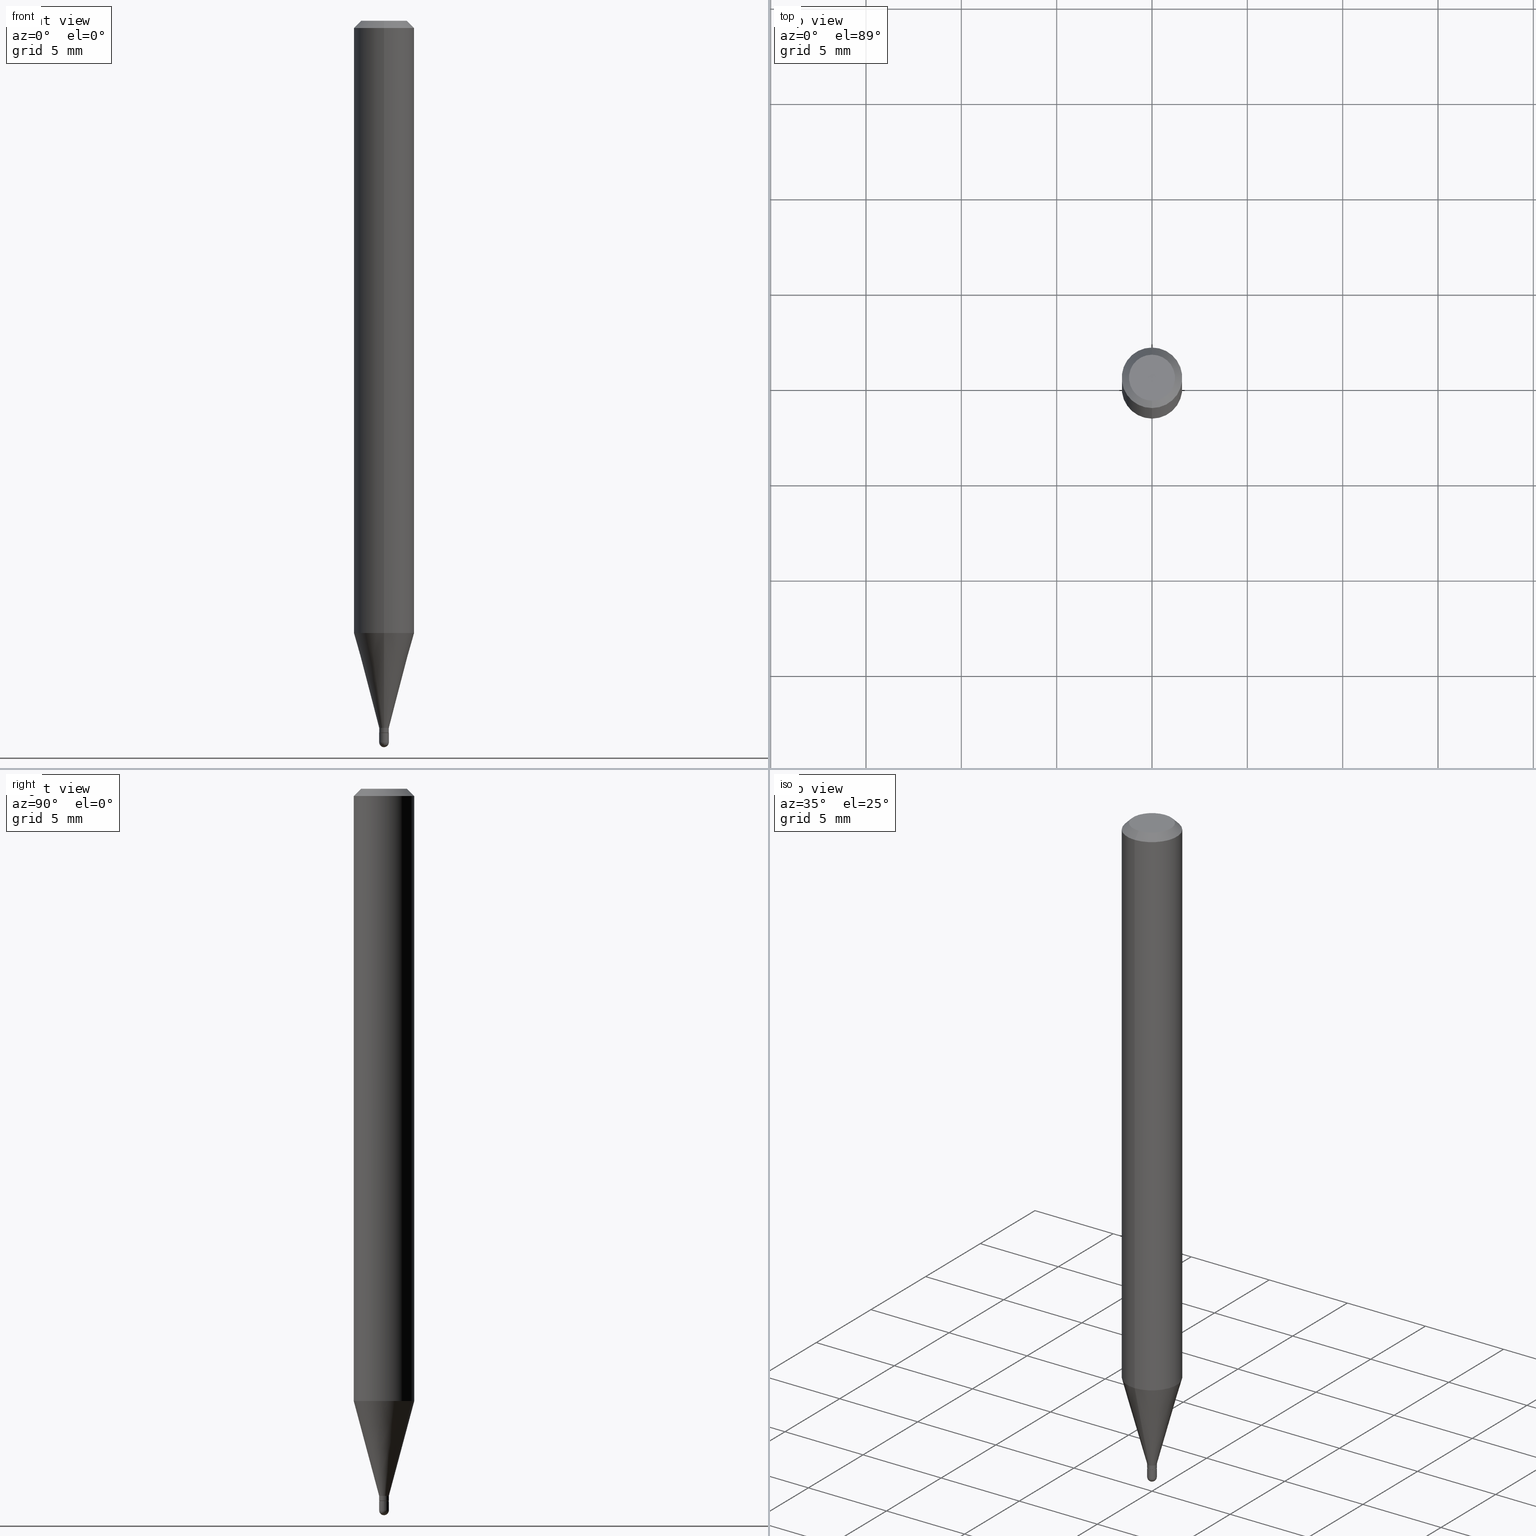
[diagram: canonical four-view strip — front | top / right | iso, engineering-drawing reading convention]
A machine part, canonical four-view strip (front | top / right | iso — engineering-drawing reading convention). The complete STEP part file that produces these views, byte-faithful:
ISO-10303-21;
HEADER;
FILE_DESCRIPTION (( 'STEP AP203' ),
    '1' );
FILE_NAME ('00755.STEP',
    '2024-03-07T18:12:56',
    ( '' ),
    ( '' ),
    'SwSTEP 2.0',
    'SolidWorks 2023',
    '' );
FILE_SCHEMA (( 'CONFIG_CONTROL_DESIGN' ));
ENDSEC;

DATA;
#1 = EDGE_CURVE ( 'NONE', #361, #384, #253, .T. ) ;
#2 = ORIENTED_EDGE ( 'NONE', *, *, #416, .T. ) ;
#3 = CIRCLE ( 'NONE', #192, 0.009999999999999998473 ) ;
#4 = AXIS2_PLACEMENT_3D ( 'NONE', #403, #311, #114 ) ;
#5 = ORIENTED_EDGE ( 'NONE', *, *, #126, .F. ) ;
#6 = CYLINDRICAL_SURFACE ( 'NONE', #306, 0.009999999999999923880 ) ;
#7 = EDGE_CURVE ( 'NONE', #232, #392, #398, .T. ) ;
#8 = DIRECTION ( 'NONE',  ( 1.000000000000000000, -6.982962677686237523E-15, 0.000000000000000000 ) ) ;
#9 = CC_DESIGN_PERSON_AND_ORGANIZATION_ASSIGNMENT ( #333, #99, ( #356 ) ) ;
#10 = CIRCLE ( 'NONE', #425, 0.009999999999999923880 ) ;
#11 = APPROVAL_STATUS ( 'not_yet_approved' ) ;
#12 = VECTOR ( 'NONE', #505, 39.37007874015748143 ) ;
#13 = FACE_OUTER_BOUND ( 'NONE', #478, .T. ) ;
#14 = DIRECTION ( 'NONE',  ( -2.445468806185136597E-29, 3.491481338843145583E-15, 1.000000000000000000 ) ) ;
#15 = CALENDAR_DATE ( 2024, 7, 3 ) ;
#16 = EDGE_CURVE ( 'NONE', #399, #469, #504, .T. ) ;
#17 = DIRECTION ( 'NONE',  ( 2.445480303060877688E-29, -3.491464874662722963E-15, -1.000000000000000000 ) ) ;
#18 = APPLICATION_CONTEXT ( 'configuration controlled 3d designs of mechanical parts and assemblies' ) ;
#19 = PERSON_AND_ORGANIZATION_ROLE ( 'design_supplier' ) ;
#20 = MANIFOLD_SOLID_BREP ( 'Body-Move/Copy2[1]', #199 ) ;
#21 = AXIS2_PLACEMENT_3D ( 'NONE', #292, #93, #332 ) ;
#22 = CIRCLE ( 'NONE', #34, 0.009999999999999998473 ) ;
#23 = CARTESIAN_POINT ( 'NONE',  ( 3.643748521215853910E-29, -5.202307194876288105E-15, -1.490000000000000213 ) ) ;
#24 = VERTEX_POINT ( 'NONE', #48 ) ;
#25 = MECHANICAL_CONTEXT ( 'NONE', #18, 'mechanical' ) ;
#26 = MANIFOLD_SOLID_BREP ( 'Body-Move/Copy2[2]', #95 ) ;
#27 = LINE ( 'NONE', #148, #458 ) ;
#28 = EDGE_CURVE ( 'NONE', #83, #463, #338, .T. ) ;
#29 = ORIENTED_EDGE ( 'NONE', *, *, #80, .T. ) ;
#30 = FACE_OUTER_BOUND ( 'NONE', #159, .T. ) ;
#31 = ORIENTED_EDGE ( 'NONE', *, *, #80, .F. ) ;
#32 = AXIS2_PLACEMENT_3D ( 'NONE', #266, #347, #381 ) ;
#33 = FACE_OUTER_BOUND ( 'NONE', #195, .T. ) ;
#34 = AXIS2_PLACEMENT_3D ( 'NONE', #414, #62, #69 ) ;
#35 = EDGE_LOOP ( 'NONE', ( #109, #225, #151, #221 ) ) ;
#36 = SPHERICAL_SURFACE ( 'NONE', #97, 0.009999999999999946432 ) ;
#37 = EDGE_LOOP ( 'NONE', ( #379, #274, #67, #499 ) ) ;
#38 = CARTESIAN_POINT ( 'NONE',  ( 2.166964952502150357E-46, -3.093822512827693468E-32, -8.861101640401174078E-18 ) ) ;
#39 = ORIENTED_EDGE ( 'NONE', *, *, #470, .F. ) ;
#40 = DIRECTION ( 'NONE',  ( -2.445468806185136597E-29, 3.491481338843145583E-15, 1.000000000000000000 ) ) ;
#41 = AXIS2_PLACEMENT_3D ( 'NONE', #411, #53, #326 ) ;
#42 = CARTESIAN_POINT ( 'NONE',  ( 4.440892098500936776E-16, 0.06249999999999993755, -0.01500000000000022669 ) ) ;
#43 = VERTEX_POINT ( 'NONE', #42 ) ;
#44 = ADVANCED_FACE ( 'NONE', ( #77 ), #191, .T. ) ;
#45 = EDGE_LOOP ( 'NONE', ( #107, #421, #308, #431 ) ) ;
#46 = PRODUCT_DEFINITION ( 'UNKNOWN', '', #113, #282 ) ;
#47 = AXIS2_PLACEMENT_3D ( 'NONE', #234, #162, #475 ) ;
#48 = CARTESIAN_POINT ( 'NONE',  ( 4.440892098500932831E-16, 0.06249999999999556605, -1.264067332602634819 ) ) ;
#49 = AXIS2_PLACEMENT_3D ( 'NONE', #479, #340, #204 ) ;
#50 = AXIS2_PLACEMENT_3D ( 'NONE', #427, #276, #165 ) ;
#51 = DIRECTION ( 'NONE',  ( -6.982962677686265922E-15, -1.000000000000000000, 3.491464874662722963E-15 ) ) ;
#52 = APPLICATION_CONTEXT ( 'configuration controlled 3d designs of mechanical parts and assemblies' ) ;
#53 = DIRECTION ( 'NONE',  ( -2.445480303060877688E-29, 3.491464874662722963E-15, 1.000000000000000000 ) ) ;
#54 = DIRECTION ( 'NONE',  ( -6.982962677686265922E-15, -1.000000000000000000, 3.491464874662722568E-15 ) ) ;
#55 = LINE ( 'NONE', #154, #210 ) ;
#56 = CARTESIAN_POINT ( 'NONE',  ( -4.364351673553912750E-16, -0.06250000000000005551, -0.01499999999999979128 ) ) ;
#57 = PERSON_AND_ORGANIZATION ( #242, #323 ) ;
#58 = LINE ( 'NONE', #293, #176 ) ;
#59 = EDGE_CURVE ( 'NONE', #120, #24, #395, .T. ) ;
#60 = DATE_AND_TIME ( #213, #289 ) ;
#61 = DIRECTION ( 'NONE',  ( -2.445480303060877688E-29, 3.491464874662722963E-15, 1.000000000000000000 ) ) ;
#62 = DIRECTION ( 'NONE',  ( -2.445468806185136597E-29, 3.491481338843145583E-15, 1.000000000000000000 ) ) ;
#63 = DATE_AND_TIME ( #484, #218 ) ;
#64 = AXIS2_PLACEMENT_3D ( 'NONE', #497, #501, #215 ) ;
#65 = CC_DESIGN_APPROVAL ( #433, ( #356 ) ) ;
#66 = DIRECTION ( 'NONE',  ( 1.000000000000000000, -6.982962677686237523E-15, 0.000000000000000000 ) ) ;
#67 = ORIENTED_EDGE ( 'NONE', *, *, #118, .F. ) ;
#68 = CARTESIAN_POINT ( 'NONE',  ( 0.000000000000000000, 0.000000000000000000, 0.000000000000000000 ) ) ;
#69 = DIRECTION ( 'NONE',  ( 1.000000000000000000, -6.982962677686237523E-15, 0.000000000000000000 ) ) ;
#70 = ORIENTED_EDGE ( 'NONE', *, *, #248, .T. ) ;
#71 = CARTESIAN_POINT ( 'NONE',  ( 4.364351673553919652E-16, 0.06249999999999995143, -0.01500000000000022669 ) ) ;
#72 = ORIENTED_EDGE ( 'NONE', *, *, #453, .T. ) ;
#73 = CONICAL_SURFACE ( 'NONE', #41, 0.009499999999999999764, 0.7853981633974728149 ) ;
#74 = DIRECTION ( 'NONE',  ( -2.445480303060877688E-29, 3.491464874662722963E-15, 1.000000000000000000 ) ) ;
#75 = ORIENTED_EDGE ( 'NONE', *, *, #365, .F. ) ;
#76 = CARTESIAN_POINT ( 'NONE',  ( 0.01000000000000000021, -6.982962677686265724E-17, 4.876176775795935968E-31 ) ) ;
#77 = FACE_OUTER_BOUND ( 'NONE', #45, .T. ) ;
#78 = EDGE_LOOP ( 'NONE', ( #115, #301, #434, #503 ) ) ;
#79 = CARTESIAN_POINT ( 'NONE',  ( 0.000000000000000000, 0.000000000000000000, 0.000000000000000000 ) ) ;
#80 = EDGE_CURVE ( 'NONE', #399, #310, #474, .T. ) ;
#81 = VECTOR ( 'NONE', #142, 39.37007874015748143 ) ;
#82 = ORIENTED_EDGE ( 'NONE', *, *, #198, .F. ) ;
#83 = VERTEX_POINT ( 'NONE', #173 ) ;
#84 = CC_DESIGN_PERSON_AND_ORGANIZATION_ASSIGNMENT ( #372, #132, ( #85 ) ) ;
#85 = PRODUCT ( '00755', '00755', '', ( #25 ) ) ;
#86 = ORIENTED_EDGE ( 'NONE', *, *, #407, .F. ) ;
#87 = AXIS2_PLACEMENT_3D ( 'NONE', #243, #196, #122 ) ;
#88 = DIRECTION ( 'NONE',  ( 2.445480303060877408E-29, -3.491464874662722568E-15, -1.000000000000000000 ) ) ;
#89 = DIRECTION ( 'NONE',  ( -2.445480303060877688E-29, 3.491464874662722963E-15, 1.000000000000000000 ) ) ;
#90 = DIRECTION ( 'NONE',  ( 2.445480303060877688E-29, -3.491464874662722963E-15, -1.000000000000000000 ) ) ;
#91 = DIRECTION ( 'NONE',  ( 6.982962677686265922E-15, 1.000000000000000000, 0.000000000000000000 ) ) ;
#92 = COORDINATED_UNIVERSAL_TIME_OFFSET ( 5, 0, .BEHIND. ) ;
#93 = DIRECTION ( 'NONE',  ( -2.445480303060877688E-29, 3.491464874662722963E-15, 1.000000000000000000 ) ) ;
#94 = EDGE_CURVE ( 'NONE', #426, #437, #369, .T. ) ;
#95 = CLOSED_SHELL ( 'NONE', ( #265, #507, #207, #429, #480, #491, #461, #259, #185, #320, #156, #214 ) ) ;
#96 = AXIS2_PLACEMENT_3D ( 'NONE', #254, #445, #336 ) ;
#97 = AXIS2_PLACEMENT_3D ( 'NONE', #502, #181, #188 ) ;
#98 = DIRECTION ( 'NONE',  ( -6.982962677686265922E-15, -1.000000000000000000, 4.370956789862821150E-15 ) ) ;
#99 = PERSON_AND_ORGANIZATION_ROLE ( 'classification_officer' ) ;
#100 = CARTESIAN_POINT ( 'NONE',  ( -0.01000000000000000021, -5.096338107911845586E-15, -1.470000000000000195 ) ) ;
#101 = EDGE_CURVE ( 'NONE', #24, #324, #339, .T. ) ;
#102 = DIRECTION ( 'NONE',  ( -2.445480303060877688E-29, 3.491464874662722568E-15, 1.000000000000000000 ) ) ;
#103 = ORIENTED_EDGE ( 'NONE', *, *, #286, .F. ) ;
#104 = SHAPE_DEFINITION_REPRESENTATION ( #314, #172 ) ;
#105 = AXIS2_PLACEMENT_3D ( 'NONE', #346, #495, #178 ) ;
#106 = DIRECTION ( 'NONE',  ( -1.000000000000000000, 6.982962677686265922E-15, -4.876176775795935793E-29 ) ) ;
#107 = ORIENTED_EDGE ( 'NONE', *, *, #111, .F. ) ;
#108 = CARTESIAN_POINT ( 'NONE',  ( -6.633814543798357205E-17, -0.009500000000005132811, -1.470000000000000195 ) ) ;
#109 = ORIENTED_EDGE ( 'NONE', *, *, #476, .F. ) ;
#110 = CARTESIAN_POINT ( 'NONE',  ( 3.570401242468881823E-29, -5.097538717007575896E-15, -1.459999999999999964 ) ) ;
#111 = EDGE_CURVE ( 'NONE', #361, #437, #288, .T. ) ;
#112 = ORIENTED_EDGE ( 'NONE', *, *, #390, .F. ) ;
#113 = PRODUCT_DEFINITION_FORMATION_WITH_SPECIFIED_SOURCE ( 'ANY', '', #85, .NOT_KNOWN. ) ;
#114 = DIRECTION ( 'NONE',  ( -6.982962677686265922E-15, -1.000000000000000000, 0.000000000000000000 ) ) ;
#115 = ORIENTED_EDGE ( 'NONE', *, *, #1, .F. ) ;
#116 = DIRECTION ( 'NONE',  ( -6.982962677686265922E-15, -1.000000000000000000, 0.000000000000000000 ) ) ;
#117 = CARTESIAN_POINT ( 'NONE',  ( 3.642893354926674522E-29, -5.203531841675434889E-15, -1.490000000000000213 ) ) ;
#118 = EDGE_CURVE ( 'NONE', #324, #24, #244, .T. ) ;
#119 = CARTESIAN_POINT ( 'NONE',  ( 3.840629472727447874E-16, 0.04749999999999999362, -1.747056831868805136E-16 ) ) ;
#120 = VERTEX_POINT ( 'NONE', #131 ) ;
#121 = CC_DESIGN_PERSON_AND_ORGANIZATION_ASSIGNMENT ( #168, #374, ( #113 ) ) ;
#122 = DIRECTION ( 'NONE',  ( -7.105427357601000281E-15, -1.000000000000000000, 0.000000000000000000 ) ) ;
#123 = APPROVAL_PERSON_ORGANIZATION ( #448, #229, #141 ) ;
#124 = EDGE_LOOP ( 'NONE', ( #465, #262, #197, #267 ) ) ;
#125 = ORIENTED_EDGE ( 'NONE', *, *, #101, .F. ) ;
#126 = EDGE_CURVE ( 'NONE', #310, #184, #58, .T. ) ;
#127 = CYLINDRICAL_SURFACE ( 'NONE', #450, 0.06250000000000000000 ) ;
#128 = CARTESIAN_POINT ( 'NONE',  ( -4.364351673553916201E-16, -0.06250000000000000000, 2.182165546664201852E-16 ) ) ;
#129 = VECTOR ( 'NONE', #246, 39.37007874015748854 ) ;
#130 = CC_DESIGN_SECURITY_CLASSIFICATION ( #356, ( #113 ) ) ;
#131 = CARTESIAN_POINT ( 'NONE',  ( 2.575717417130694811E-16, 0.009999999999994827263, -1.459999999999999964 ) ) ;
#132 = PERSON_AND_ORGANIZATION_ROLE ( 'design_owner' ) ;
#133 = EDGE_CURVE ( 'NONE', #149, #43, #386, .T. ) ;
#134 = CARTESIAN_POINT ( 'NONE',  ( 0.000000000000000000, 0.000000000000000000, 0.000000000000000000 ) ) ;
#135 = APPLICATION_PROTOCOL_DEFINITION ( 'international standard', 'config_control_design', 1994, #52 ) ;
#136 = CYLINDRICAL_SURFACE ( 'NONE', #160, 0.009999999999999923880 ) ;
#137 = DIRECTION ( 'NONE',  ( 6.982962677686265922E-15, 1.000000000000000000, -3.483106191921935554E-15 ) ) ;
#138 = APPROVAL_STATUS ( 'not_yet_approved' ) ;
#139 = CARTESIAN_POINT ( 'NONE',  ( -7.105427357597337501E-17, -0.01000000000000517489, -1.490000000000000213 ) ) ;
#140 = EDGE_LOOP ( 'NONE', ( #161, #436 ) ) ;
#141 = APPROVAL_ROLE ( '' ) ;
#142 = DIRECTION ( 'NONE',  ( 4.937700262164548042E-15, 0.7071067811865451302, -0.7071067811865499042 ) ) ;
#143 = ORIENTED_EDGE ( 'NONE', *, *, #275, .T. ) ;
#144 = VECTOR ( 'NONE', #319, 39.37007874015748143 ) ;
#145 = AXIS2_PLACEMENT_3D ( 'NONE', #397, #40, #467 ) ;
#146 = DIRECTION ( 'NONE',  ( -2.445468806185136597E-29, 3.491481338843145583E-15, 1.000000000000000000 ) ) ;
#147 = ORIENTED_EDGE ( 'NONE', *, *, #351, .T. ) ;
#148 = CARTESIAN_POINT ( 'NONE',  ( -4.287811248607203282E-16, -0.06250000000000005551, -0.01499999999999979128 ) ) ;
#149 = VERTEX_POINT ( 'NONE', #56 ) ;
#150 = CARTESIAN_POINT ( 'NONE',  ( 3.594856045499490115E-29, -5.132453365754203280E-15, -1.470000000000000195 ) ) ;
#151 = ORIENTED_EDGE ( 'NONE', *, *, #198, .T. ) ;
#152 = AXIS2_PLACEMENT_3D ( 'NONE', #334, #258, #413 ) ;
#153 = LOCAL_TIME ( 13, 12, 56.00000000000000000, #494 ) ;
#154 = CARTESIAN_POINT ( 'NONE',  ( 4.440892098500625669E-16, 0.06250000000000000000, -2.182165546664201852E-16 ) ) ;
#155 = ORIENTED_EDGE ( 'NONE', *, *, #241, .T. ) ;
#156 = ADVANCED_FACE ( 'NONE', ( #251 ), #73, .T. ) ;
#157 = FACE_OUTER_BOUND ( 'NONE', #387, .T. ) ;
#158 = CARTESIAN_POINT ( 'NONE',  ( 7.105427357604516135E-17, 0.009999999999994827263, -1.459999999999999964 ) ) ;
#159 = EDGE_LOOP ( 'NONE', ( #305, #155, #2, #472, #350 ) ) ;
#160 = AXIS2_PLACEMENT_3D ( 'NONE', #134, #206, #54 ) ;
#161 = ORIENTED_EDGE ( 'NONE', *, *, #470, .T. ) ;
#162 = DIRECTION ( 'NONE',  ( -2.445480303060877688E-29, 3.491464874662722963E-15, 1.000000000000000000 ) ) ;
#163 = FACE_OUTER_BOUND ( 'NONE', #35, .T. ) ;
#164 = CARTESIAN_POINT ( 'NONE',  ( 0.000000000000000000, 0.000000000000000000, 0.000000000000000000 ) ) ;
#165 = DIRECTION ( 'NONE',  ( -6.982962677686265922E-15, -1.000000000000000000, 0.000000000000000000 ) ) ;
#166 = DIRECTION ( 'NONE',  ( 1.000000000000000000, -6.982962677686265922E-15, 4.883557194083112340E-29 ) ) ;
#167 = VECTOR ( 'NONE', #102, 39.37007874015748143 ) ;
#168 = PERSON_AND_ORGANIZATION ( #242, #323 ) ;
#169 = DIRECTION ( 'NONE',  ( 1.000000000000000000, -6.982962677686237523E-15, 0.000000000000000000 ) ) ;
#170 = CC_DESIGN_PERSON_AND_ORGANIZATION_ASSIGNMENT ( #261, #299, ( #46 ) ) ;
#171 = COORDINATED_UNIVERSAL_TIME_OFFSET ( 5, 0, .BEHIND. ) ;
#172 = ADVANCED_BREP_SHAPE_REPRESENTATION ( '00755', ( #20, #26, #498 ), #482 ) ;
#173 = CARTESIAN_POINT ( 'NONE',  ( -3.773273898774340269E-16, -0.04749999999999999362, 1.569834799060781747E-16 ) ) ;
#174 = DATE_TIME_ROLE ( 'classification_date' ) ;
#175 = CARTESIAN_POINT ( 'NONE',  ( -6.982962677682643127E-17, -0.01000000000000502050, -1.459999999999999964 ) ) ;
#176 = VECTOR ( 'NONE', #290, 39.37007874015748143 ) ;
#177 = APPROVAL_DATE_TIME ( #63, #229 ) ;
#178 = DIRECTION ( 'NONE',  ( -6.982962677686265922E-15, -1.000000000000000000, 3.491464874662722568E-15 ) ) ;
#179 = EDGE_CURVE ( 'NONE', #392, #285, #272, .T. ) ;
#180 = ORIENTED_EDGE ( 'NONE', *, *, #133, .T. ) ;
#181 = DIRECTION ( 'NONE',  ( -1.000000000000000000, 6.982962677686265133E-15, -4.883557194083112340E-29 ) ) ;
#182 = ORIENTED_EDGE ( 'NONE', *, *, #476, .T. ) ;
#183 = CARTESIAN_POINT ( 'NONE',  ( 6.750155989724545846E-17, 0.009499999999994866717, -1.470000000000000195 ) ) ;
#184 = VERTEX_POINT ( 'NONE', #175 ) ;
#185 = ADVANCED_FACE ( 'NONE', ( #439 ), #443, .F. ) ;
#186 = AXIS2_PLACEMENT_3D ( 'NONE', #406, #485, #8 ) ;
#187 = CYLINDRICAL_SURFACE ( 'NONE', #32, 0.01000000000000000021 ) ;
#188 = DIRECTION ( 'NONE',  ( 6.982962677686265133E-15, 1.000000000000000000, 0.000000000000000000 ) ) ;
#189 = ORIENTED_EDGE ( 'NONE', *, *, #358, .T. ) ;
#190 = DIRECTION ( 'NONE',  ( -2.445480303060877688E-29, 3.491464874662722963E-15, 1.000000000000000000 ) ) ;
#191 = SPHERICAL_SURFACE ( 'NONE', #217, 0.009999999999999946432 ) ;
#192 = AXIS2_PLACEMENT_3D ( 'NONE', #23, #146, #66 ) ;
#193 = CONICAL_SURFACE ( 'NONE', #230, 0.009499999999999999764, 0.7853981633974728149 ) ;
#194 = CARTESIAN_POINT ( 'NONE',  ( 7.105427357604517368E-17, 0.009999999999994757874, -1.469500000000000250 ) ) ;
#195 = EDGE_LOOP ( 'NONE', ( #460, #269 ) ) ;
#196 = DIRECTION ( 'NONE',  ( -1.000000000000000000, 7.105427357601001070E-15, -4.926315508542082329E-29 ) ) ;
#197 = ORIENTED_EDGE ( 'NONE', *, *, #126, .T. ) ;
#198 = EDGE_CURVE ( 'NONE', #324, #149, #370, .T. ) ;
#199 = CLOSED_SHELL ( 'NONE', ( #438, #44, #343, #376, #327 ) ) ;
#200 = CIRCLE ( 'NONE', #322, 0.009999999999999923880 ) ;
#201 = CIRCLE ( 'NONE', #331, 0.04749999999999999362 ) ;
#202 = ORIENTED_EDGE ( 'NONE', *, *, #280, .F. ) ;
#203 = LINE ( 'NONE', #76, #12 ) ;
#204 = DIRECTION ( 'NONE',  ( 1.000000000000000000, -6.982962677686235945E-15, 0.000000000000000000 ) ) ;
#205 =( CONVERSION_BASED_UNIT ( 'INCH', #291 ) LENGTH_UNIT ( ) NAMED_UNIT ( #375 ) );
#206 = DIRECTION ( 'NONE',  ( -2.445480303060877688E-29, 3.491464874662722963E-15, 1.000000000000000000 ) ) ;
#207 = ADVANCED_FACE ( 'NONE', ( #13 ), #435, .T. ) ;
#208 = DIRECTION ( 'NONE',  ( 6.982962677686265922E-15, 1.000000000000000000, -3.491464874662722568E-15 ) ) ;
#209 = AXIS2_PLACEMENT_3D ( 'NONE', #371, #14, #169 ) ;
#210 = VECTOR ( 'NONE', #430, 39.37007874015748143 ) ;
#211 = CARTESIAN_POINT ( 'NONE',  ( -6.982962677682643127E-17, -0.01000000000000502050, -1.459999999999999964 ) ) ;
#212 = DIRECTION ( 'NONE',  ( 6.982962677686265922E-15, 1.000000000000000000, -3.483106191921935554E-15 ) ) ;
#213 = CALENDAR_DATE ( 2024, 7, 3 ) ;
#214 = ADVANCED_FACE ( 'NONE', ( #451 ), #136, .T. ) ;
#215 = DIRECTION ( 'NONE',  ( 1.000000000000000000, -6.982962677686235945E-15, 0.000000000000000000 ) ) ;
#216 = ORIENTED_EDGE ( 'NONE', *, *, #118, .T. ) ;
#217 = AXIS2_PLACEMENT_3D ( 'NONE', #117, #277, #511 ) ;
#218 = LOCAL_TIME ( 13, 12, 56.00000000000000000, #92 ) ;
#219 = CALENDAR_DATE ( 2024, 7, 3 ) ;
#220 = CARTESIAN_POINT ( 'NONE',  ( 0.01000000000000000021, -5.202307194876286528E-15, -1.470000000000000195 ) ) ;
#221 = ORIENTED_EDGE ( 'NONE', *, *, #275, .F. ) ;
#222 = APPROVAL_DATE_TIME ( #335, #250 ) ;
#223 = CARTESIAN_POINT ( 'NONE',  ( 0.009999999999999998473, -5.237222008264718177E-15, -1.490000000000000213 ) ) ;
#224 = EDGE_CURVE ( 'NONE', #184, #324, #404, .T. ) ;
#225 = ORIENTED_EDGE ( 'NONE', *, *, #101, .T. ) ;
#226 = DIRECTION ( 'NONE',  ( -6.982962677686265922E-15, -1.000000000000000000, 3.491464874662722568E-15 ) ) ;
#227 = EDGE_LOOP ( 'NONE', ( #344, #147, #236, #125 ) ) ;
#228 = VECTOR ( 'NONE', #459, 39.37007874015748854 ) ;
#229 = APPROVAL ( #454, 'UNSPECIFIED' ) ;
#230 = AXIS2_PLACEMENT_3D ( 'NONE', #150, #190, #394 ) ;
#231 = DIRECTION ( 'NONE',  ( -6.982962677686265922E-15, -1.000000000000000000, 0.000000000000000000 ) ) ;
#232 = VERTEX_POINT ( 'NONE', #366 ) ;
#233 = DIRECTION ( 'NONE',  ( -2.445480303060877688E-29, 3.491464874662722963E-15, 1.000000000000000000 ) ) ;
#234 = CARTESIAN_POINT ( 'NONE',  ( 3.594856045499490115E-29, -5.132453365754203280E-15, -1.470000000000000195 ) ) ;
#235 = CYLINDRICAL_SURFACE ( 'NONE', #145, 0.01000000000000000021 ) ;
#236 = ORIENTED_EDGE ( 'NONE', *, *, #224, .T. ) ;
#237 = AXIS2_PLACEMENT_3D ( 'NONE', #249, #88, #208 ) ;
#238 =( NAMED_UNIT ( * ) SI_UNIT ( $, .STERADIAN. ) SOLID_ANGLE_UNIT ( ) );
#239 = EDGE_LOOP ( 'NONE', ( #72, #189, #313, #5 ) ) ;
#240 = ORIENTED_EDGE ( 'NONE', *, *, #444, .F. ) ;
#241 = EDGE_CURVE ( 'NONE', #232, #384, #417, .T. ) ;
#242 = PERSON ( 'UNSPECIFIED', 'UNSPECIFIED', 'UNSPECIFIED', ('UNSPECIFIED'), ('UNSPECIFIED'), ('UNSPECIFIED') ) ;
#243 = CARTESIAN_POINT ( 'NONE',  ( 3.642893354926674522E-29, -5.203531841675434889E-15, -1.490000000000000213 ) ) ;
#244 = CIRCLE ( 'NONE', #21, 0.06250000000000000000 ) ;
#245 = LOCAL_TIME ( 13, 12, 56.00000000000000000, #294 ) ;
#246 = DIRECTION ( 'NONE',  ( -1.807323732225332111E-15, -0.2588190451025184635, 0.9659258262890689783 ) ) ;
#247 = FACE_OUTER_BOUND ( 'NONE', #37, .T. ) ;
#248 = EDGE_CURVE ( 'NONE', #469, #399, #263, .T. ) ;
#249 = CARTESIAN_POINT ( 'NONE',  ( 3.316907271900976096E-16, 0.04749999999999999362, -1.702751323666799104E-16 ) ) ;
#250 = APPROVAL ( #138, 'UNSPECIFIED' ) ;
#251 = FACE_OUTER_BOUND ( 'NONE', #477, .T. ) ;
#252 = SECURITY_CLASSIFICATION_LEVEL ( 'unclassified' ) ;
#253 = CIRCLE ( 'NONE', #87, 0.009999999999999946432 ) ;
#254 = CARTESIAN_POINT ( 'NONE',  ( 3.668220454591318687E-31, -5.237197311994087797E-17, -0.01500000000000000812 ) ) ;
#255 = AXIS2_PLACEMENT_3D ( 'NONE', #487, #90, #212 ) ;
#256 = APPROVAL_PERSON_ORGANIZATION ( #415, #250, #486 ) ;
#257 = DIRECTION ( 'NONE',  ( 0.000000000000000000, 0.000000000000000000, 1.000000000000000000 ) ) ;
#258 = DIRECTION ( 'NONE',  ( -2.445480303060877688E-29, 3.491464874662722963E-15, 1.000000000000000000 ) ) ;
#259 = ADVANCED_FACE ( 'NONE', ( #296 ), #362, .T. ) ;
#260 = LINE ( 'NONE', #71, #81 ) ;
#261 = PERSON_AND_ORGANIZATION ( #242, #323 ) ;
#262 = ORIENTED_EDGE ( 'NONE', *, *, #365, .T. ) ;
#263 = CIRCLE ( 'NONE', #152, 0.009499999999999999764 ) ;
#264 = DATE_TIME_ROLE ( 'creation_date' ) ;
#265 = ADVANCED_FACE ( 'NONE', ( #402 ), #6, .T. ) ;
#266 = CARTESIAN_POINT ( 'NONE',  ( 0.000000000000000000, 0.000000000000000000, 0.000000000000000000 ) ) ;
#267 = ORIENTED_EDGE ( 'NONE', *, *, #351, .F. ) ;
#268 = DIRECTION ( 'NONE',  ( -6.982962677686265922E-15, -1.000000000000000000, 3.483106191921935554E-15 ) ) ;
#269 = ORIENTED_EDGE ( 'NONE', *, *, #248, .F. ) ;
#270 = PLANE ( 'NONE',  #396 ) ;
#271 = ORIENTED_EDGE ( 'NONE', *, *, #28, .F. ) ;
#272 = CIRCLE ( 'NONE', #49, 0.01000000000000000021 ) ;
#273 = DIRECTION ( 'NONE',  ( -6.982962677686266711E-15, -1.000000000000000000, 3.491464874662723357E-15 ) ) ;
#274 = ORIENTED_EDGE ( 'NONE', *, *, #59, .T. ) ;
#275 = EDGE_CURVE ( 'NONE', #43, #149, #409, .T. ) ;
#276 = DIRECTION ( 'NONE',  ( -2.445480303060877688E-29, 3.491464874662722963E-15, 1.000000000000000000 ) ) ;
#277 = DIRECTION ( 'NONE',  ( -1.000000000000000000, 6.982962677686265133E-15, -4.883557194083112340E-29 ) ) ;
#278 = CARTESIAN_POINT ( 'NONE',  ( -6.633814543798357205E-17, -0.009500000000005132811, -1.470000000000000195 ) ) ;
#279 = VECTOR ( 'NONE', #483, 39.37007874015748854 ) ;
#280 = EDGE_CURVE ( 'NONE', #285, #392, #440, .T. ) ;
#281 = DIRECTION ( 'NONE',  ( -2.445480303060877688E-29, 3.491464874662722963E-15, 1.000000000000000000 ) ) ;
#282 = DESIGN_CONTEXT ( 'detailed design', #52, 'design' ) ;
#283 = ORIENTED_EDGE ( 'NONE', *, *, #453, .F. ) ;
#284 = CC_DESIGN_DATE_AND_TIME_ASSIGNMENT ( #408, #264, ( #46 ) ) ;
#285 = VERTEX_POINT ( 'NONE', #220 ) ;
#286 = EDGE_CURVE ( 'NONE', #469, #456, #309, .T. ) ;
#287 = DIRECTION ( 'NONE',  ( -6.982962677686265922E-15, -1.000000000000000000, 3.491464874662722963E-15 ) ) ;
#288 = CIRCLE ( 'NONE', #401, 0.009999999999999946432 ) ;
#289 = LOCAL_TIME ( 13, 12, 56.00000000000000000, #171 ) ;
#290 = DIRECTION ( 'NONE',  ( -2.445480303060877688E-29, 3.491464874662722568E-15, 1.000000000000000000 ) ) ;
#291 = LENGTH_MEASURE_WITH_UNIT ( LENGTH_MEASURE( 0.02539999999999999897 ), #318 );
#292 = CARTESIAN_POINT ( 'NONE',  ( 3.091251763622446182E-29, -4.413446690990699411E-15, -1.264067332602634597 ) ) ;
#293 = CARTESIAN_POINT ( 'NONE',  ( -6.982962677686212723E-17, -0.009999999999999923880, 3.491464874662695821E-17 ) ) ;
#294 = COORDINATED_UNIVERSAL_TIME_OFFSET ( 5, 0, .BEHIND. ) ;
#295 = AXIS2_PLACEMENT_3D ( 'NONE', #512, #281, #325 ) ;
#296 = FACE_OUTER_BOUND ( 'NONE', #496, .T. ) ;
#297 = CC_DESIGN_APPROVAL ( #229, ( #113 ) ) ;
#298 = DIRECTION ( 'NONE',  ( -4.851104656540964275E-15, -0.7071067811865500152, -0.7071067811865450192 ) ) ;
#299 = PERSON_AND_ORGANIZATION_ROLE ( 'creator' ) ;
#300 = DIRECTION ( 'NONE',  ( -2.445480303060877688E-29, 3.491464874662722963E-15, 1.000000000000000000 ) ) ;
#301 = ORIENTED_EDGE ( 'NONE', *, *, #111, .T. ) ;
#302 = DATE_AND_TIME ( #219, #245 ) ;
#303 = EDGE_CURVE ( 'NONE', #437, #232, #3, .T. ) ;
#304 = CARTESIAN_POINT ( 'NONE',  ( 3.668220454591318687E-31, -5.237197311994087797E-17, -0.01500000000000000812 ) ) ;
#305 = ORIENTED_EDGE ( 'NONE', *, *, #7, .F. ) ;
#306 = AXIS2_PLACEMENT_3D ( 'NONE', #164, #383, #226 ) ;
#307 = CARTESIAN_POINT ( 'NONE',  ( 7.105427357600945307E-17, 0.009999999999999923880, -3.491464874662695821E-17 ) ) ;
#308 = ORIENTED_EDGE ( 'NONE', *, *, #241, .F. ) ;
#309 = LINE ( 'NONE', #183, #228 ) ;
#310 = VERTEX_POINT ( 'NONE', #385 ) ;
#311 = DIRECTION ( 'NONE',  ( -2.445480303060877688E-29, 3.491464874662722963E-15, 1.000000000000000000 ) ) ;
#312 = EDGE_CURVE ( 'NONE', #184, #120, #355, .T. ) ;
#313 = ORIENTED_EDGE ( 'NONE', *, *, #312, .F. ) ;
#314 = PRODUCT_DEFINITION_SHAPE ( 'NONE', 'NONE',  #46 ) ;
#315 = CONICAL_SURFACE ( 'NONE', #341, 0.009999999999999923880, 0.2617993877991505736 ) ;
#316 = FACE_OUTER_BOUND ( 'NONE', #354, .T. ) ;
#317 = ORIENTED_EDGE ( 'NONE', *, *, #390, .T. ) ;
#318 =( LENGTH_UNIT ( ) NAMED_UNIT ( * ) SI_UNIT ( $, .METRE. ) );
#319 = DIRECTION ( 'NONE',  ( 1.839019923739602287E-15, 0.2588190451025252359, 0.9659258262890670910 ) ) ;
#320 = ADVANCED_FACE ( 'NONE', ( #33 ), #422, .F. ) ;
#321 = ORIENTED_EDGE ( 'NONE', *, *, #133, .F. ) ;
#322 = AXIS2_PLACEMENT_3D ( 'NONE', #462, #74, #231 ) ;
#323 = ORGANIZATION ( 'UNSPECIFIED', 'UNSPECIFIED', '' ) ;
#324 = VERTEX_POINT ( 'NONE', #418 ) ;
#325 = DIRECTION ( 'NONE',  ( -6.982962677686266711E-15, -1.000000000000000000, 3.491464874662723357E-15 ) ) ;
#326 = DIRECTION ( 'NONE',  ( -6.982962677686265922E-15, -1.000000000000000000, 0.000000000000000000 ) ) ;
#327 = ADVANCED_FACE ( 'NONE', ( #30 ), #187, .T. ) ;
#328 = CC_DESIGN_PERSON_AND_ORGANIZATION_ASSIGNMENT ( #57, #19, ( #113 ) ) ;
#329 = DIRECTION ( 'NONE',  ( -2.445480303060877688E-29, 3.491464874662722963E-15, 1.000000000000000000 ) ) ;
#330 = AXIS2_PLACEMENT_3D ( 'NONE', #110, #300, #377 ) ;
#331 = AXIS2_PLACEMENT_3D ( 'NONE', #38, #89, #273 ) ;
#332 = DIRECTION ( 'NONE',  ( -6.982962677686265922E-15, -1.000000000000000000, 4.370956789862821150E-15 ) ) ;
#333 = PERSON_AND_ORGANIZATION ( #242, #323 ) ;
#334 = CARTESIAN_POINT ( 'NONE',  ( 3.594856045499490115E-29, -5.132453365754203280E-15, -1.470000000000000195 ) ) ;
#335 = DATE_AND_TIME ( #15, #449 ) ;
#336 = DIRECTION ( 'NONE',  ( -6.982962677686265922E-15, -1.000000000000000000, 3.483106191921935554E-15 ) ) ;
#337 = APPROVAL_ROLE ( '' ) ;
#338 = CIRCLE ( 'NONE', #295, 0.04749999999999999362 ) ;
#339 = CIRCLE ( 'NONE', #489, 0.06250000000000000000 ) ;
#340 = DIRECTION ( 'NONE',  ( -2.445468806185136597E-29, 3.491481338843145583E-15, 1.000000000000000000 ) ) ;
#341 = AXIS2_PLACEMENT_3D ( 'NONE', #471, #329, #116 ) ;
#342 = FACE_OUTER_BOUND ( 'NONE', #423, .T. ) ;
#343 = ADVANCED_FACE ( 'NONE', ( #342 ), #270, .F. ) ;
#344 = ORIENTED_EDGE ( 'NONE', *, *, #59, .F. ) ;
#345 = COORDINATED_UNIVERSAL_TIME_OFFSET ( 5, 0, .BEHIND. ) ;
#346 = CARTESIAN_POINT ( 'NONE',  ( 3.594856045499490115E-29, -5.132453365754203280E-15, -1.470000000000000195 ) ) ;
#347 = DIRECTION ( 'NONE',  ( -2.445468806185136597E-29, 3.491481338843145583E-15, 1.000000000000000000 ) ) ;
#348 = ORIENTED_EDGE ( 'NONE', *, *, #280, .T. ) ;
#349 = DIRECTION ( 'NONE',  ( -6.982962677686265922E-15, -1.000000000000000000, 0.000000000000000000 ) ) ;
#350 = ORIENTED_EDGE ( 'NONE', *, *, #179, .F. ) ;
#351 = EDGE_CURVE ( 'NONE', #120, #184, #10, .T. ) ;
#352 = DIRECTION ( 'NONE',  ( -2.445480303060877688E-29, 3.491464874662722963E-15, 1.000000000000000000 ) ) ;
#353 = ORIENTED_EDGE ( 'NONE', *, *, #7, .T. ) ;
#354 = EDGE_LOOP ( 'NONE', ( #508, #353, #202, #240, #363 ) ) ;
#355 = CIRCLE ( 'NONE', #330, 0.009999999999999923880 ) ;
#356 = SECURITY_CLASSIFICATION ( '', '', #252 ) ;
#357 = EDGE_LOOP ( 'NONE', ( #428, #493, #283, #31 ) ) ;
#358 = EDGE_CURVE ( 'NONE', #456, #120, #424, .T. ) ;
#359 = DIRECTION ( 'NONE',  ( -2.445468806185136877E-29, 3.491481338843145188E-15, 1.000000000000000000 ) ) ;
#360 = UNCERTAINTY_MEASURE_WITH_UNIT (LENGTH_MEASURE( 1.000000000000000082E-05 ), #205, 'distance_accuracy_value', 'NONE');
#361 = VERTEX_POINT ( 'NONE', #452 ) ;
#362 = CONICAL_SURFACE ( 'NONE', #506, 0.06250000000000000000, 0.7853981633974483900 ) ;
#363 = ORIENTED_EDGE ( 'NONE', *, *, #94, .T. ) ;
#364 = CYLINDRICAL_SURFACE ( 'NONE', #378, 0.06250000000000000000 ) ;
#365 = EDGE_CURVE ( 'NONE', #456, #310, #200, .T. ) ;
#366 = CARTESIAN_POINT ( 'NONE',  ( -0.009999999999999998473, -5.096338107911845586E-15, -1.490000000000000213 ) ) ;
#367 = CARTESIAN_POINT ( 'NONE',  ( 0.000000000000000000, 0.000000000000000000, 0.000000000000000000 ) ) ;
#368 = CARTESIAN_POINT ( 'NONE',  ( 3.091251763622446182E-29, -4.413446690990699411E-15, -1.264067332602634597 ) ) ;
#369 = CIRCLE ( 'NONE', #186, 0.009999999999999998473 ) ;
#370 = LINE ( 'NONE', #128, #468 ) ;
#371 = CARTESIAN_POINT ( 'NONE',  ( 3.643748521215853910E-29, -5.202307194876288105E-15, -1.490000000000000213 ) ) ;
#372 = PERSON_AND_ORGANIZATION ( #242, #323 ) ;
#373 = CARTESIAN_POINT ( 'NONE',  ( 3.668220454591318687E-31, -5.237197311994087797E-17, -0.01500000000000000812 ) ) ;
#374 = PERSON_AND_ORGANIZATION_ROLE ( 'creator' ) ;
#375 = DIMENSIONAL_EXPONENTS ( 1.000000000000000000, 0.000000000000000000, 0.000000000000000000, 0.000000000000000000, 0.000000000000000000, 0.000000000000000000, 0.000000000000000000 ) ;
#376 = ADVANCED_FACE ( 'NONE', ( #391 ), #36, .T. ) ;
#377 = DIRECTION ( 'NONE',  ( -6.982962677686265922E-15, -1.000000000000000000, 0.000000000000000000 ) ) ;
#378 = AXIS2_PLACEMENT_3D ( 'NONE', #367, #233, #51 ) ;
#379 = ORIENTED_EDGE ( 'NONE', *, *, #312, .T. ) ;
#380 = PERSON_AND_ORGANIZATION ( #242, #323 ) ;
#381 = DIRECTION ( 'NONE',  ( 1.000000000000000000, -6.982962677686265922E-15, 4.876176775795935793E-29 ) ) ;
#382 = ORIENTED_EDGE ( 'NONE', *, *, #407, .T. ) ;
#383 = DIRECTION ( 'NONE',  ( -2.445480303060877688E-29, 3.491464874662722963E-15, 1.000000000000000000 ) ) ;
#384 = VERTEX_POINT ( 'NONE', #139 ) ;
#385 = CARTESIAN_POINT ( 'NONE',  ( -6.982962677682641895E-17, -0.01000000000000508815, -1.469500000000000250 ) ) ;
#386 = CIRCLE ( 'NONE', #96, 0.06250000000000000000 ) ;
#387 = EDGE_LOOP ( 'NONE', ( #216, #182, #321, #82 ) ) ;
#388 = AXIS2_PLACEMENT_3D ( 'NONE', #304, #352, #268 ) ;
#389 = CIRCLE ( 'NONE', #50, 0.009999999999999923880 ) ;
#390 = EDGE_CURVE ( 'NONE', #83, #149, #27, .T. ) ;
#391 = FACE_OUTER_BOUND ( 'NONE', #78, .T. ) ;
#392 = VERTEX_POINT ( 'NONE', #100 ) ;
#393 = CARTESIAN_POINT ( 'NONE',  ( 6.982962677689890787E-17, 0.009999999999994768282, -1.490000000000000213 ) ) ;
#394 = DIRECTION ( 'NONE',  ( -6.982962677686265922E-15, -1.000000000000000000, 0.000000000000000000 ) ) ;
#395 = LINE ( 'NONE', #158, #144 ) ;
#396 = AXIS2_PLACEMENT_3D ( 'NONE', #464, #492, #106 ) ;
#397 = CARTESIAN_POINT ( 'NONE',  ( 0.000000000000000000, 0.000000000000000000, 0.000000000000000000 ) ) ;
#398 = LINE ( 'NONE', #400, #488 ) ;
#399 = VERTEX_POINT ( 'NONE', #108 ) ;
#400 = CARTESIAN_POINT ( 'NONE',  ( -0.01000000000000000021, 7.105427357601002007E-17, -4.918935090254906272E-31 ) ) ;
#401 = AXIS2_PLACEMENT_3D ( 'NONE', #490, #166, #91 ) ;
#402 = FACE_OUTER_BOUND ( 'NONE', #239, .T. ) ;
#403 = CARTESIAN_POINT ( 'NONE',  ( 3.570401242468881823E-29, -5.097538717007575896E-15, -1.459999999999999964 ) ) ;
#404 = LINE ( 'NONE', #211, #129 ) ;
#405 = APPLICATION_PROTOCOL_DEFINITION ( 'international standard', 'config_control_design', 1994, #18 ) ;
#406 = CARTESIAN_POINT ( 'NONE',  ( 3.643748521215853910E-29, -5.202307194876288105E-15, -1.490000000000000213 ) ) ;
#407 = EDGE_CURVE ( 'NONE', #463, #43, #260, .T. ) ;
#408 = DATE_AND_TIME ( #446, #153 ) ;
#409 = CIRCLE ( 'NONE', #388, 0.06250000000000000000 ) ;
#410 = CC_DESIGN_APPROVAL ( #250, ( #46 ) ) ;
#411 = CARTESIAN_POINT ( 'NONE',  ( 3.594856045499490115E-29, -5.132453365754203280E-15, -1.470000000000000195 ) ) ;
#412 = DIRECTION ( 'NONE',  ( 1.000000000000000000, 0.000000000000000000, 0.000000000000000000 ) ) ;
#413 = DIRECTION ( 'NONE',  ( -6.982962677686265922E-15, -1.000000000000000000, 0.000000000000000000 ) ) ;
#414 = CARTESIAN_POINT ( 'NONE',  ( 3.643748521215853910E-29, -5.202307194876288105E-15, -1.490000000000000213 ) ) ;
#415 = PERSON_AND_ORGANIZATION ( #242, #323 ) ;
#416 = EDGE_CURVE ( 'NONE', #384, #426, #22, .T. ) ;
#417 = CIRCLE ( 'NONE', #209, 0.009999999999999998473 ) ;
#418 = CARTESIAN_POINT ( 'NONE',  ( -4.364351673553606573E-16, -0.06250000000000441314, -1.264067332602634375 ) ) ;
#419 = ORIENTED_EDGE ( 'NONE', *, *, #179, .T. ) ;
#420 = CARTESIAN_POINT ( 'NONE',  ( 3.570401242468881823E-29, -5.097538717007575896E-15, -1.459999999999999964 ) ) ;
#421 = ORIENTED_EDGE ( 'NONE', *, *, #1, .T. ) ;
#422 = PLANE ( 'NONE',  #105 ) ;
#423 = EDGE_LOOP ( 'NONE', ( #348, #419 ) ) ;
#424 = LINE ( 'NONE', #307, #167 ) ;
#425 = AXIS2_PLACEMENT_3D ( 'NONE', #420, #455, #349 ) ;
#426 = VERTEX_POINT ( 'NONE', #223 ) ;
#427 = CARTESIAN_POINT ( 'NONE',  ( 3.593633305347960485E-29, -5.130707633316871911E-15, -1.469500000000000250 ) ) ;
#428 = ORIENTED_EDGE ( 'NONE', *, *, #16, .T. ) ;
#429 = ADVANCED_FACE ( 'NONE', ( #157 ), #127, .T. ) ;
#430 = DIRECTION ( 'NONE',  ( -2.445480303060877688E-29, 3.491464874662722568E-15, 1.000000000000000000 ) ) ;
#431 = ORIENTED_EDGE ( 'NONE', *, *, #303, .F. ) ;
#432 =( NAMED_UNIT ( * ) PLANE_ANGLE_UNIT ( ) SI_UNIT ( $, .RADIAN. ) );
#433 = APPROVAL ( #11, 'UNSPECIFIED' ) ;
#434 = ORIENTED_EDGE ( 'NONE', *, *, #94, .F. ) ;
#435 = CONICAL_SURFACE ( 'NONE', #255, 0.06250000000000000000, 0.7853981633974483900 ) ;
#436 = ORIENTED_EDGE ( 'NONE', *, *, #28, .T. ) ;
#437 = VERTEX_POINT ( 'NONE', #393 ) ;
#438 = ADVANCED_FACE ( 'NONE', ( #316 ), #235, .T. ) ;
#439 = FACE_OUTER_BOUND ( 'NONE', #140, .T. ) ;
#440 = CIRCLE ( 'NONE', #64, 0.01000000000000000021 ) ;
#441 = DIRECTION ( 'NONE',  ( -2.445480303060877688E-29, 3.491464874662722963E-15, 1.000000000000000000 ) ) ;
#442 = CONICAL_SURFACE ( 'NONE', #4, 0.009999999999999923880, 0.2617993877991505736 ) ;
#443 = PLANE ( 'NONE',  #237 ) ;
#444 = EDGE_CURVE ( 'NONE', #426, #285, #203, .T. ) ;
#445 = DIRECTION ( 'NONE',  ( -2.445480303060877688E-29, 3.491464874662722963E-15, 1.000000000000000000 ) ) ;
#446 = CALENDAR_DATE ( 2024, 7, 3 ) ;
#447 = DIRECTION ( 'NONE',  ( -2.445480303060877688E-29, 3.491464874662722568E-15, 1.000000000000000000 ) ) ;
#448 = PERSON_AND_ORGANIZATION ( #242, #323 ) ;
#449 = LOCAL_TIME ( 13, 12, 56.00000000000000000, #345 ) ;
#450 = AXIS2_PLACEMENT_3D ( 'NONE', #79, #441, #287 ) ;
#451 = FACE_OUTER_BOUND ( 'NONE', #124, .T. ) ;
#452 = CARTESIAN_POINT ( 'NONE',  ( 3.667775626133116042E-29, -5.237834331664292357E-15, -1.500000000000000222 ) ) ;
#453 = EDGE_CURVE ( 'NONE', #310, #456, #389, .T. ) ;
#454 = APPROVAL_STATUS ( 'not_yet_approved' ) ;
#455 = DIRECTION ( 'NONE',  ( -2.445480303060877688E-29, 3.491464874662722963E-15, 1.000000000000000000 ) ) ;
#456 = VERTEX_POINT ( 'NONE', #194 ) ;
#457 = APPROVAL_DATE_TIME ( #60, #433 ) ;
#458 = VECTOR ( 'NONE', #298, 39.37007874015748143 ) ;
#459 = DIRECTION ( 'NONE',  ( 5.024295867788184663E-15, 0.7071067811865672237, 0.7071067811865276997 ) ) ;
#460 = ORIENTED_EDGE ( 'NONE', *, *, #16, .F. ) ;
#461 = ADVANCED_FACE ( 'NONE', ( #163 ), #364, .T. ) ;
#462 = CARTESIAN_POINT ( 'NONE',  ( 3.593633305347960485E-29, -5.130707633316871911E-15, -1.469500000000000250 ) ) ;
#463 = VERTEX_POINT ( 'NONE', #119 ) ;
#464 = CARTESIAN_POINT ( 'NONE',  ( 6.982962677689861205E-17, 0.009999999999994867161, -1.470000000000000195 ) ) ;
#465 = ORIENTED_EDGE ( 'NONE', *, *, #358, .F. ) ;
#466 = CC_DESIGN_DATE_AND_TIME_ASSIGNMENT ( #302, #174, ( #356 ) ) ;
#467 = DIRECTION ( 'NONE',  ( 1.000000000000000000, -6.982962677686265922E-15, 4.876176775795935793E-29 ) ) ;
#468 = VECTOR ( 'NONE', #447, 39.37007874015748143 ) ;
#469 = VERTEX_POINT ( 'NONE', #510 ) ;
#470 = EDGE_CURVE ( 'NONE', #463, #83, #201, .T. ) ;
#471 = CARTESIAN_POINT ( 'NONE',  ( 3.570401242468881823E-29, -5.097538717007575896E-15, -1.459999999999999964 ) ) ;
#472 = ORIENTED_EDGE ( 'NONE', *, *, #444, .T. ) ;
#473 = FACE_OUTER_BOUND ( 'NONE', #357, .T. ) ;
#474 = LINE ( 'NONE', #278, #279 ) ;
#475 = DIRECTION ( 'NONE',  ( -6.982962677686265922E-15, -1.000000000000000000, 0.000000000000000000 ) ) ;
#476 = EDGE_CURVE ( 'NONE', #24, #43, #55, .T. ) ;
#477 = EDGE_LOOP ( 'NONE', ( #103, #70, #29, #75 ) ) ;
#478 = EDGE_LOOP ( 'NONE', ( #271, #317, #180, #86 ) ) ;
#479 = CARTESIAN_POINT ( 'NONE',  ( 3.594839145092150820E-29, -5.132477568099424807E-15, -1.470000000000000195 ) ) ;
#480 = ADVANCED_FACE ( 'NONE', ( #247 ), #315, .T. ) ;
#481 = FACE_OUTER_BOUND ( 'NONE', #227, .T. ) ;
#482 =( GEOMETRIC_REPRESENTATION_CONTEXT ( 3 ) GLOBAL_UNCERTAINTY_ASSIGNED_CONTEXT ( ( #360 ) ) GLOBAL_UNIT_ASSIGNED_CONTEXT ( ( #205, #432, #238 ) ) REPRESENTATION_CONTEXT ( 'NONE', 'WORKASPACE' ) );
#483 = DIRECTION ( 'NONE',  ( -4.937700262164667949E-15, -0.7071067811865623387, 0.7071067811865325847 ) ) ;
#484 = CALENDAR_DATE ( 2024, 7, 3 ) ;
#485 = DIRECTION ( 'NONE',  ( -2.445468806185136597E-29, 3.491481338843145583E-15, 1.000000000000000000 ) ) ;
#486 = APPROVAL_ROLE ( '' ) ;
#487 = CARTESIAN_POINT ( 'NONE',  ( 3.668220454591318687E-31, -5.237197311994087797E-17, -0.01500000000000000812 ) ) ;
#488 = VECTOR ( 'NONE', #359, 39.37007874015748143 ) ;
#489 = AXIS2_PLACEMENT_3D ( 'NONE', #368, #61, #98 ) ;
#490 = CARTESIAN_POINT ( 'NONE',  ( 3.642893354926674522E-29, -5.203531841675434889E-15, -1.490000000000000213 ) ) ;
#491 = ADVANCED_FACE ( 'NONE', ( #481 ), #442, .T. ) ;
#492 = DIRECTION ( 'NONE',  ( 2.438088387897960049E-29, -3.491481338843145188E-15, -1.000000000000000000 ) ) ;
#493 = ORIENTED_EDGE ( 'NONE', *, *, #286, .T. ) ;
#494 = COORDINATED_UNIVERSAL_TIME_OFFSET ( 5, 0, .BEHIND. ) ;
#495 = DIRECTION ( 'NONE',  ( -2.445480303060877408E-29, 3.491464874662722568E-15, 1.000000000000000000 ) ) ;
#496 = EDGE_LOOP ( 'NONE', ( #112, #39, #382, #143 ) ) ;
#497 = CARTESIAN_POINT ( 'NONE',  ( 3.594839145092150820E-29, -5.132477568099424807E-15, -1.470000000000000195 ) ) ;
#498 = AXIS2_PLACEMENT_3D ( 'NONE', #68, #257, #412 ) ;
#499 = ORIENTED_EDGE ( 'NONE', *, *, #224, .F. ) ;
#500 = PRODUCT_RELATED_PRODUCT_CATEGORY ( 'detail', '', ( #85 ) ) ;
#501 = DIRECTION ( 'NONE',  ( -2.445468806185136597E-29, 3.491481338843145583E-15, 1.000000000000000000 ) ) ;
#502 = CARTESIAN_POINT ( 'NONE',  ( 3.642893354926674522E-29, -5.203531841675434889E-15, -1.490000000000000213 ) ) ;
#503 = ORIENTED_EDGE ( 'NONE', *, *, #416, .F. ) ;
#504 = CIRCLE ( 'NONE', #47, 0.009499999999999999764 ) ;
#505 = DIRECTION ( 'NONE',  ( -2.445468806185136877E-29, 3.491481338843145188E-15, 1.000000000000000000 ) ) ;
#506 = AXIS2_PLACEMENT_3D ( 'NONE', #373, #17, #137 ) ;
#507 = ADVANCED_FACE ( 'NONE', ( #473 ), #193, .T. ) ;
#508 = ORIENTED_EDGE ( 'NONE', *, *, #303, .T. ) ;
#509 = APPROVAL_PERSON_ORGANIZATION ( #380, #433, #337 ) ;
#510 = CARTESIAN_POINT ( 'NONE',  ( 6.927791673664542700E-17, 0.009499999999994866717, -1.470000000000000195 ) ) ;
#511 = DIRECTION ( 'NONE',  ( 6.982962677686265133E-15, 1.000000000000000000, 0.000000000000000000 ) ) ;
#512 = CARTESIAN_POINT ( 'NONE',  ( 2.166964952502150357E-46, -3.093822512827693468E-32, -8.861101640401174078E-18 ) ) ;
ENDSEC;
END-ISO-10303-21;
